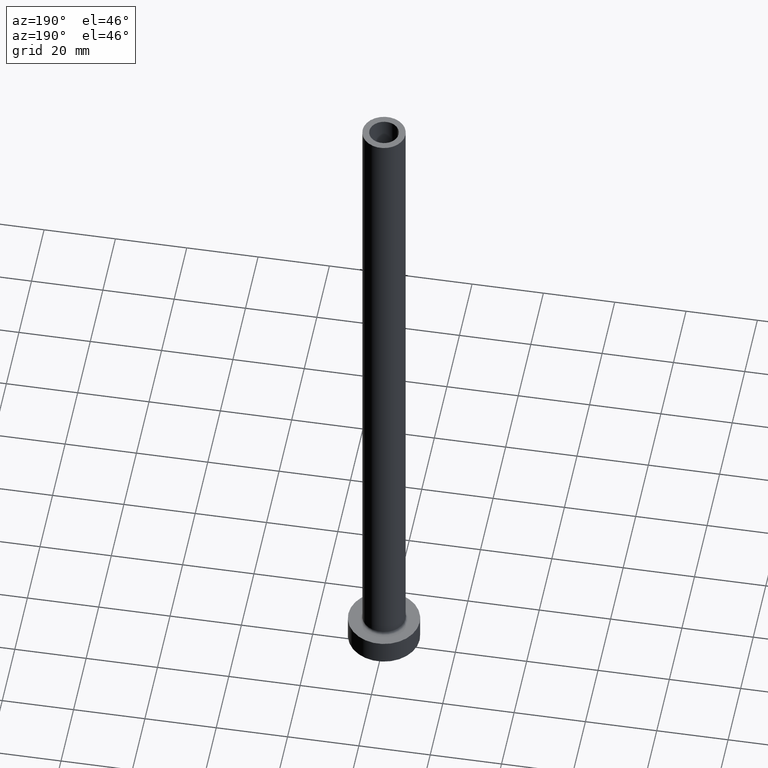
[diagram: clean part render]
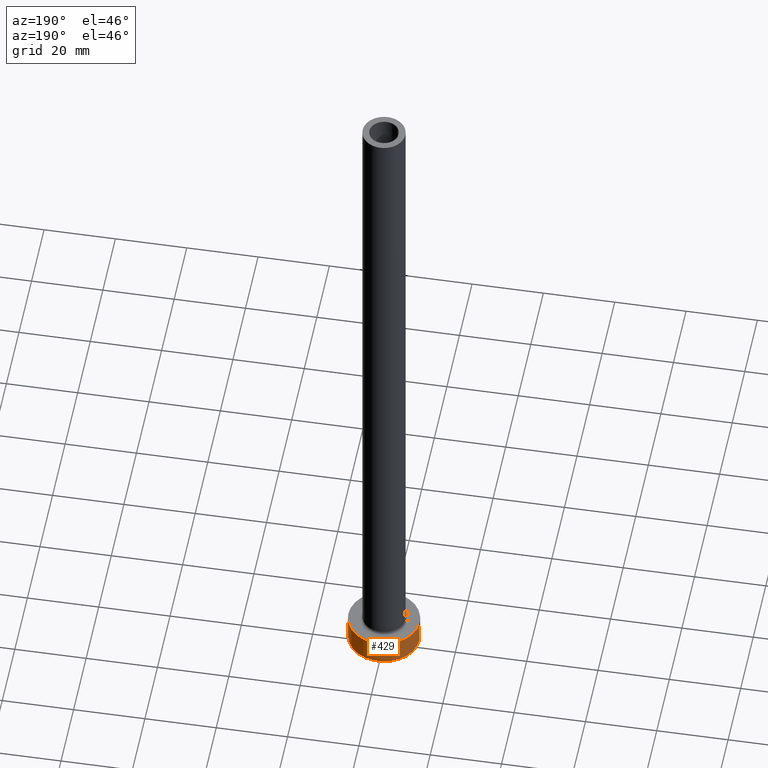
[diagram: same view with one face highlighted and labeled with its STEP entity id]
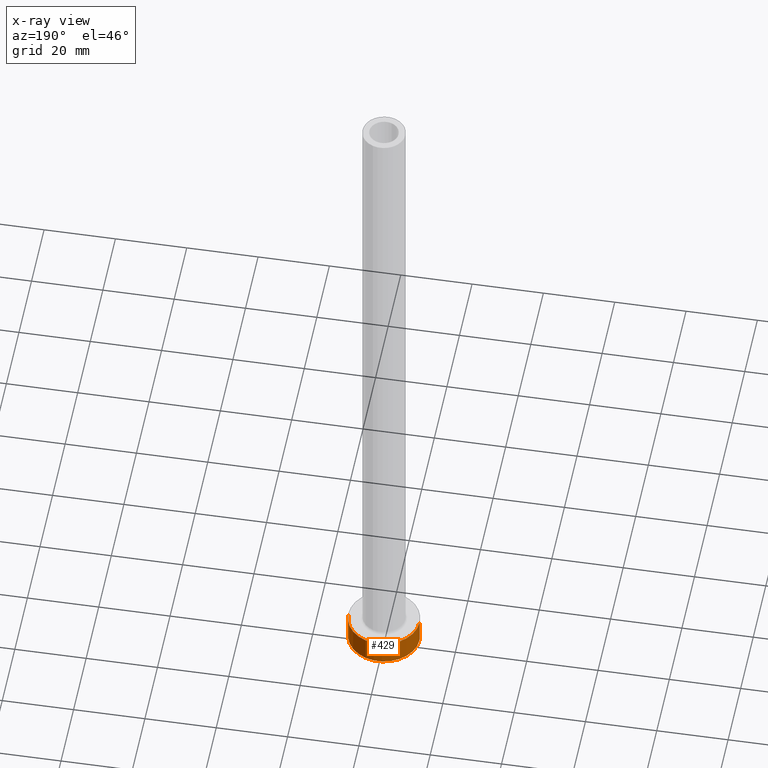
[diagram: x-ray of the same camera — body ghosted, the highlighted face saturated]
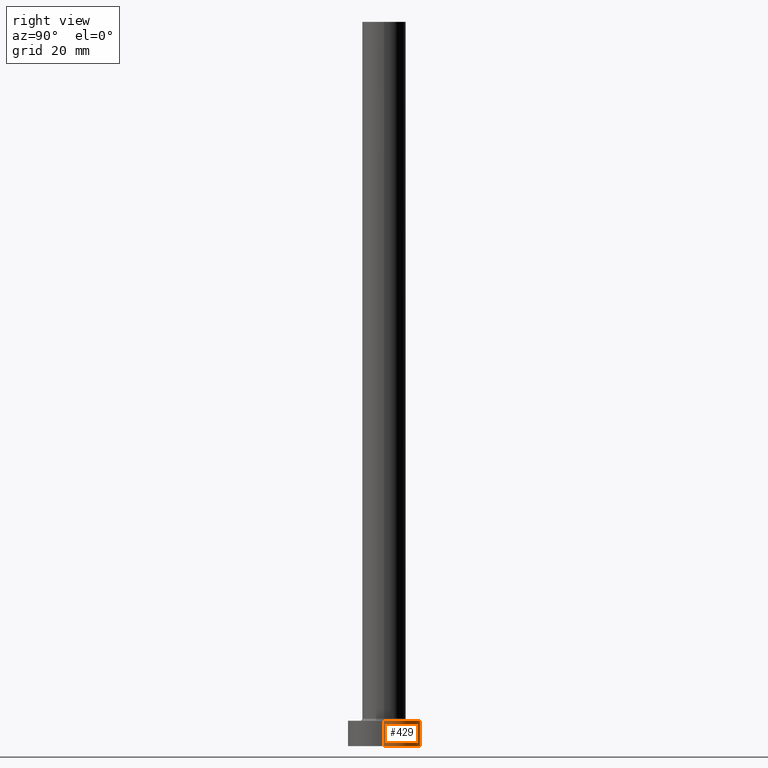
[diagram: same view with one face highlighted and labeled with its STEP entity id]
A machine part, auxiliary view. The second image highlights one B-rep face of the part: STEP entity #429.
The next image is the same camera in x-ray: the body ghosted, the highlighted face saturated — about 0% of this face is hidden behind the body in this view.
A second angle (right view) of the same face is appended — the face is thin or edge-on in the first view.
In plain terms, the highlighted cylindrical surface (edge-blend (fillet) strip) has radius 10 mm, axis along (-0, -0, -1).
Its self-contained STEP definition (entity closure, byte-faithful):
#5 = CARTESIAN_POINT ( 'NONE',  ( 0.000000000000000000, 0.000000000000000000, 7.000000000000000000 ) ) ;
#11 = DIRECTION ( 'NONE',  ( 0.000000000000000000, 0.000000000000000000, 1.000000000000000000 ) ) ;
#15 = VERTEX_POINT ( 'NONE', #106 ) ;
#28 = AXIS2_PLACEMENT_3D ( 'NONE', #5, #394, #149 ) ;
#35 = DIRECTION ( 'NONE',  ( -0.000000000000000000, -0.000000000000000000, -1.000000000000000000 ) ) ;
#39 = EDGE_CURVE ( 'NONE', #15, #114, #144, .T. ) ;
#65 = VERTEX_POINT ( 'NONE', #410 ) ;
#83 = VERTEX_POINT ( 'NONE', #413 ) ;
#91 = CARTESIAN_POINT ( 'NONE',  ( -10.00000000000000000, 0.000000000000000000, 0.000000000000000000 ) ) ;
#106 = CARTESIAN_POINT ( 'NONE',  ( -10.00000000000000000, 0.000000000000000000, 7.000000000000000000 ) ) ;
#111 = CARTESIAN_POINT ( 'NONE',  ( -10.00000000000000000, 0.000000000000000000, 7.000000000000000000 ) ) ;
#114 = VERTEX_POINT ( 'NONE', #91 ) ;
#118 = AXIS2_PLACEMENT_3D ( 'NONE', #179, #397, #332 ) ;
#119 = CARTESIAN_POINT ( 'NONE',  ( 10.00000000000000000, 1.224646799147353256E-15, 7.000000000000000000 ) ) ;
#129 = DIRECTION ( 'NONE',  ( -0.000000000000000000, -0.000000000000000000, -1.000000000000000000 ) ) ;
#144 = LINE ( 'NONE', #111, #456 ) ;
#149 = DIRECTION ( 'NONE',  ( 1.000000000000000000, 0.000000000000000000, 0.000000000000000000 ) ) ;
#179 = CARTESIAN_POINT ( 'NONE',  ( 0.000000000000000000, 0.000000000000000000, 7.000000000000000000 ) ) ;
#200 = ORIENTED_EDGE ( 'NONE', *, *, #333, .T. ) ;
#213 = LINE ( 'NONE', #119, #313 ) ;
#225 = ORIENTED_EDGE ( 'NONE', *, *, #324, .T. ) ;
#248 = ORIENTED_EDGE ( 'NONE', *, *, #39, .F. ) ;
#255 = FACE_OUTER_BOUND ( 'NONE', #331, .T. ) ;
#262 = ORIENTED_EDGE ( 'NONE', *, *, #380, .F. ) ;
#282 = CIRCLE ( 'NONE', #28, 10.00000000000000000 ) ;
#287 = CYLINDRICAL_SURFACE ( 'NONE', #118, 10.00000000000000000 ) ;
#304 = CIRCLE ( 'NONE', #374, 10.00000000000000000 ) ;
#313 = VECTOR ( 'NONE', #35, 1000.000000000000000 ) ;
#323 = DIRECTION ( 'NONE',  ( 1.000000000000000000, 0.000000000000000000, 0.000000000000000000 ) ) ;
#324 = EDGE_CURVE ( 'NONE', #65, #114, #304, .T. ) ;
#331 = EDGE_LOOP ( 'NONE', ( #262, #200, #225, #248 ) ) ;
#332 = DIRECTION ( 'NONE',  ( -1.000000000000000000, 0.000000000000000000, 0.000000000000000000 ) ) ;
#333 = EDGE_CURVE ( 'NONE', #83, #65, #213, .T. ) ;
#374 = AXIS2_PLACEMENT_3D ( 'NONE', #461, #11, #323 ) ;
#380 = EDGE_CURVE ( 'NONE', #83, #15, #282, .T. ) ;
#394 = DIRECTION ( 'NONE',  ( 0.000000000000000000, 0.000000000000000000, 1.000000000000000000 ) ) ;
#397 = DIRECTION ( 'NONE',  ( -0.000000000000000000, -0.000000000000000000, -1.000000000000000000 ) ) ;
#410 = CARTESIAN_POINT ( 'NONE',  ( 10.00000000000000000, 1.224646799147353256E-15, 0.000000000000000000 ) ) ;
#413 = CARTESIAN_POINT ( 'NONE',  ( 10.00000000000000000, 1.224646799147353256E-15, 7.000000000000000000 ) ) ;
#429 = ADVANCED_FACE ( 'NONE', ( #255 ), #287, .T. ) ;
#456 = VECTOR ( 'NONE', #129, 1000.000000000000000 ) ;
#461 = CARTESIAN_POINT ( 'NONE',  ( 0.000000000000000000, 0.000000000000000000, 0.000000000000000000 ) ) ;